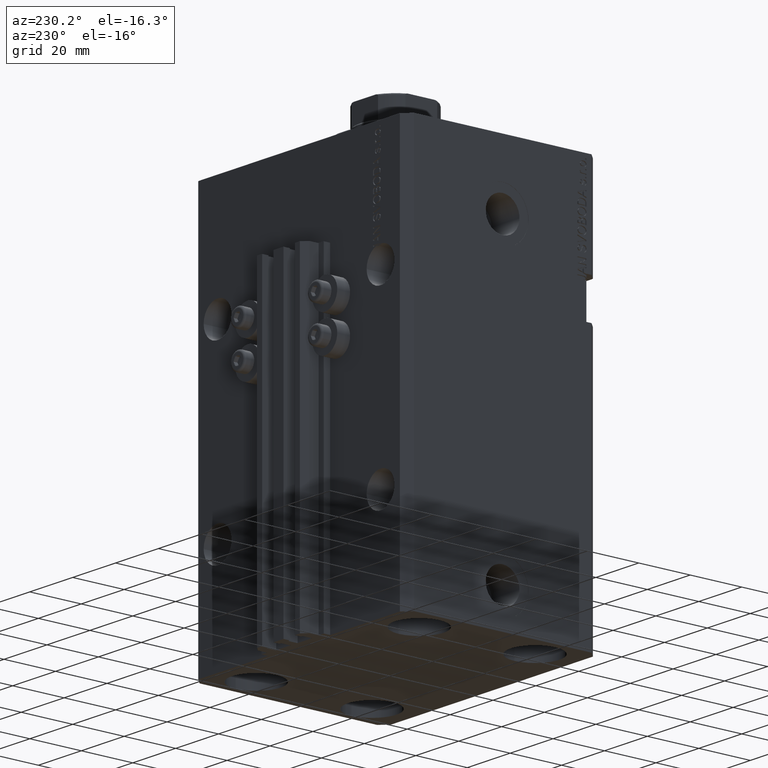
[diagram: clean part render]
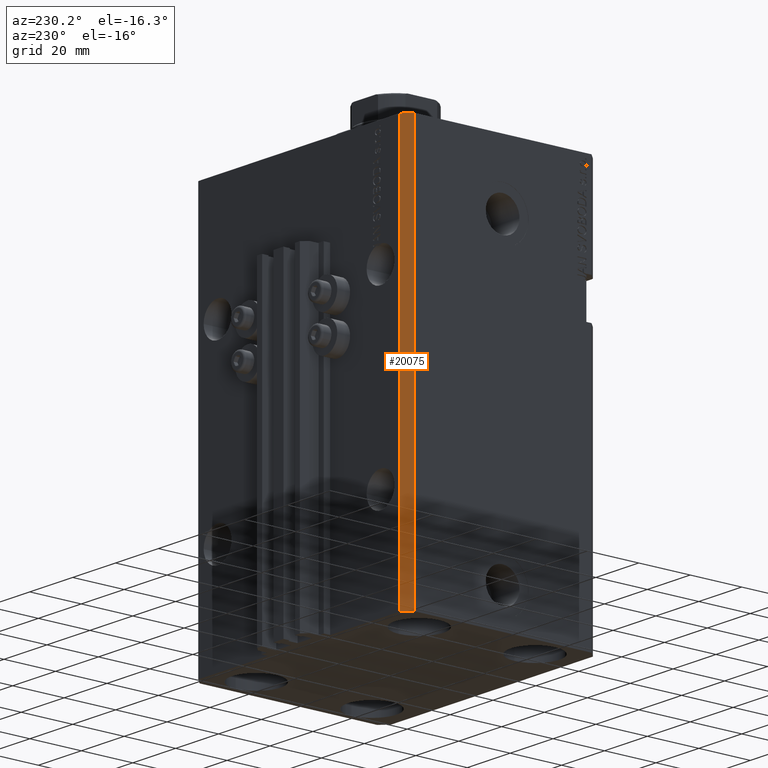
[diagram: same view with one face highlighted and labeled with its STEP entity id]
A machine part, auxiliary view. The second image highlights one B-rep face of the part: STEP entity #20075.
In plain terms, the highlighted planar face has unit normal (-0.7071, 0.7071, 0).
Its self-contained STEP definition (entity closure, byte-faithful):
#1102 = VERTEX_POINT ( 'NONE', #10820 ) ;
#1430 = DIRECTION ( 'NONE',  ( -0.7071067811865483499, -0.7071067811865466846, 0.000000000000000000 ) ) ;
#1474 = EDGE_CURVE ( 'NONE', #34626, #17594, #12626, .T. ) ;
#2008 = DIRECTION ( 'NONE',  ( -0.7071067811865467956, 0.7071067811865483499, 0.000000000000000000 ) ) ;
#2374 = VECTOR ( 'NONE', #13442, 1000.000000000000000 ) ;
#2743 = CARTESIAN_POINT ( 'NONE',  ( -47.00000000000001421, 37.50000000000000000, -155.0000000000000000 ) ) ;
#7151 = VECTOR ( 'NONE', #29210, 1000.000000000000000 ) ;
#9349 = ORIENTED_EDGE ( 'NONE', *, *, #25474, .T. ) ;
#10788 = CARTESIAN_POINT ( 'NONE',  ( -50.00000000000001421, 34.50000000000000000, 0.000000000000000000 ) ) ;
#10820 = CARTESIAN_POINT ( 'NONE',  ( -47.00000000000001421, 37.50000000000000000, 0.000000000000000000 ) ) ;
#12626 = LINE ( 'NONE', #34801, #26968 ) ;
#13442 = DIRECTION ( 'NONE',  ( 0.000000000000000000, 0.000000000000000000, 1.000000000000000000 ) ) ;
#13935 = DIRECTION ( 'NONE',  ( 0.000000000000000000, 0.000000000000000000, 1.000000000000000000 ) ) ;
#14806 = LINE ( 'NONE', #36987, #7151 ) ;
#17083 = CARTESIAN_POINT ( 'NONE',  ( -50.00000000000001421, 34.50000000000000000, -155.0000000000000000 ) ) ;
#17572 = EDGE_CURVE ( 'NONE', #1102, #25290, #14806, .T. ) ;
#17594 = VERTEX_POINT ( 'NONE', #18448 ) ;
#18448 = CARTESIAN_POINT ( 'NONE',  ( -50.00000000000001421, 34.50000000000000000, -155.0000000000000000 ) ) ;
#20075 = ADVANCED_FACE ( 'NONE', ( #43652 ), #40217, .T. ) ;
#24384 = AXIS2_PLACEMENT_3D ( 'NONE', #43893, #2008, #39271 ) ;
#24756 = VECTOR ( 'NONE', #13935, 1000.000000000000000 ) ;
#25290 = VERTEX_POINT ( 'NONE', #10788 ) ;
#25474 = EDGE_CURVE ( 'NONE', #17594, #25290, #46843, .T. ) ;
#26968 = VECTOR ( 'NONE', #1430, 1000.000000000000000 ) ;
#29210 = DIRECTION ( 'NONE',  ( -0.7071067811865483499, -0.7071067811865466846, 0.000000000000000000 ) ) ;
#30348 = ORIENTED_EDGE ( 'NONE', *, *, #1474, .T. ) ;
#34626 = VERTEX_POINT ( 'NONE', #35967 ) ;
#34801 = CARTESIAN_POINT ( 'NONE',  ( -47.00000000000001421, 37.50000000000000000, -155.0000000000000000 ) ) ;
#34867 = EDGE_LOOP ( 'NONE', ( #38127, #42516, #30348, #9349 ) ) ;
#35967 = CARTESIAN_POINT ( 'NONE',  ( -47.00000000000001421, 37.50000000000000000, -155.0000000000000000 ) ) ;
#36121 = LINE ( 'NONE', #2743, #24756 ) ;
#36987 = CARTESIAN_POINT ( 'NONE',  ( -47.00000000000001421, 37.50000000000000000, 0.000000000000000000 ) ) ;
#38127 = ORIENTED_EDGE ( 'NONE', *, *, #17572, .F. ) ;
#39271 = DIRECTION ( 'NONE',  ( -0.7071067811865483499, -0.7071067811865467956, 0.000000000000000000 ) ) ;
#40217 = PLANE ( 'NONE',  #24384 ) ;
#42516 = ORIENTED_EDGE ( 'NONE', *, *, #47006, .F. ) ;
#43652 = FACE_OUTER_BOUND ( 'NONE', #34867, .T. ) ;
#43893 = CARTESIAN_POINT ( 'NONE',  ( -47.00000000000001421, 37.50000000000000000, -155.0000000000000000 ) ) ;
#46843 = LINE ( 'NONE', #17083, #2374 ) ;
#47006 = EDGE_CURVE ( 'NONE', #34626, #1102, #36121, .T. ) ;